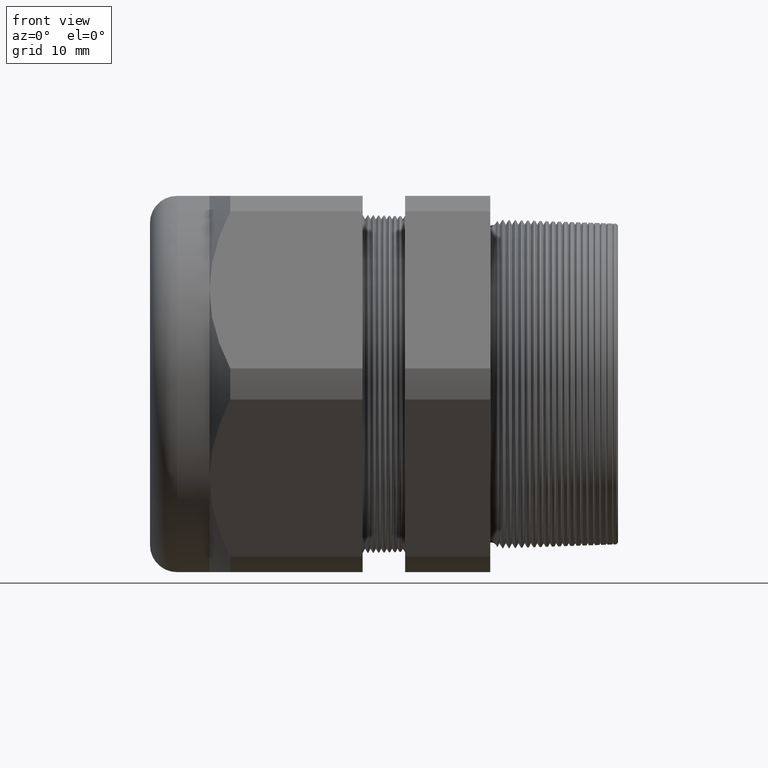
[diagram: clean part render]
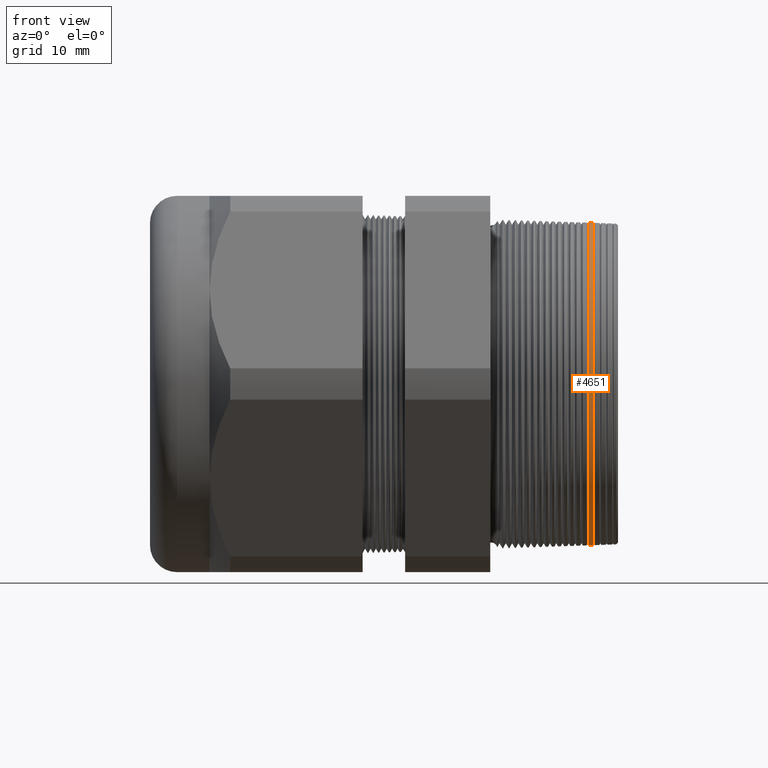
[diagram: same view with one face highlighted and labeled with its STEP entity id]
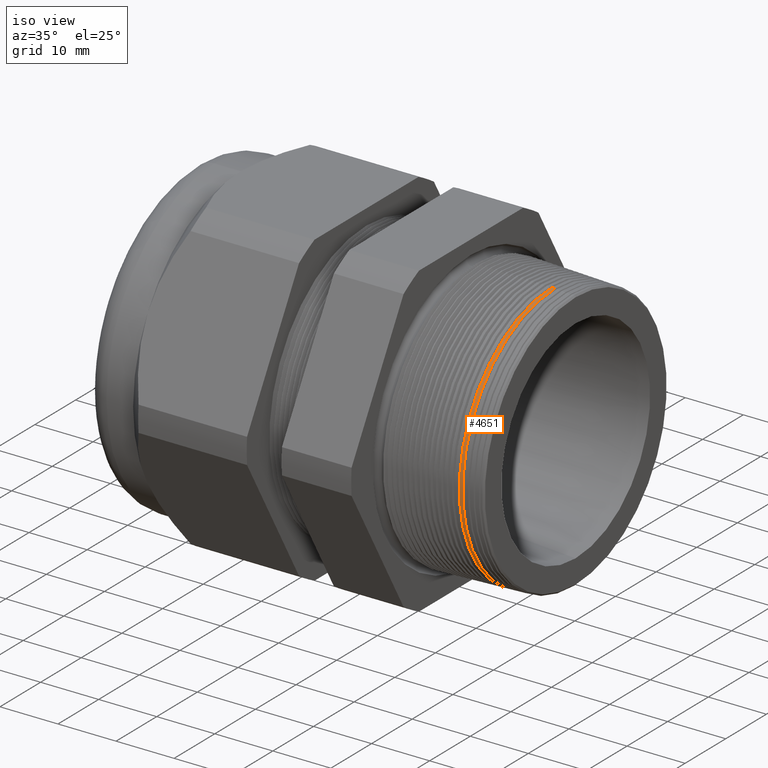
[diagram: same view with one face highlighted and labeled with its STEP entity id]
A machine part, front view. The second image highlights one B-rep face of the part: STEP entity #4651.
A second angle (iso view) of the same face is appended — the face is thin or edge-on in the first view.
In plain terms, the highlighted conical surface has half-angle 2 deg.
Its self-contained STEP definition (entity closure, byte-faithful):
#531 = CARTESIAN_POINT ( 'NONE',  ( 0.2384085732638686900, 0.0000000000000000000, 0.8960972114318578300 ) ) ;
#544 = CARTESIAN_POINT ( 'NONE',  ( 0.2384085732638686900, 1.097402581704893800E-016, -0.8960972114318578300 ) ) ;
#633 = CARTESIAN_POINT ( 'NONE',  ( 0.2605946313630380700, 1.096928181566572200E-016, -0.8953224572110462000 ) ) ;
#687 = CARTESIAN_POINT ( 'NONE',  ( 0.2605946313630380700, 0.0000000000000000000, 0.8953224572110462000 ) ) ;
#1462 = DIRECTION ( 'NONE',  ( -0.9993908270190959800, 0.0000000000000000000, 0.03489949670249389200 ) ) ;
#1463 = VECTOR ( 'NONE', #1462, 39.37007874015748100 ) ;
#1464 = CARTESIAN_POINT ( 'NONE',  ( 0.3999999999999999700, 0.0000000000000000000, 0.8904543144669638800 ) ) ;
#1468 = LINE ( 'NONE', #1464, #1463 ) ;
#1544 = DIRECTION ( 'NONE',  ( 0.0000000000000000000, 0.0000000000000000000, 1.000000000000000000 ) ) ;
#1545 = DIRECTION ( 'NONE',  ( 1.000000000000000000, 0.0000000000000000000, 0.0000000000000000000 ) ) ;
#1546 = AXIS2_PLACEMENT_3D ( 'NONE', #1553, #1545, #1544 ) ;
#1547 = CIRCLE ( 'NONE', #1546, 0.8953224572110462000 ) ;
#1553 = CARTESIAN_POINT ( 'NONE',  ( 0.2605946313630380700, 0.0000000000000000000, 0.0000000000000000000 ) ) ;
#1593 = DIRECTION ( 'NONE',  ( 0.0000000000000000000, 0.0000000000000000000, 1.000000000000000000 ) ) ;
#1594 = DIRECTION ( 'NONE',  ( -1.000000000000000000, 0.0000000000000000000, 0.0000000000000000000 ) ) ;
#1595 = CARTESIAN_POINT ( 'NONE',  ( 0.3999999999999999700, 0.0000000000000000000, 0.0000000000000000000 ) ) ;
#1596 = AXIS2_PLACEMENT_3D ( 'NONE', #1595, #1594, #1593 ) ;
#1597 = CONICAL_SURFACE ( 'NONE', #1596, 0.8904543144669638800, 0.03490658503987950600 ) ;
#1598 = FACE_OUTER_BOUND ( 'NONE', #4647, .T. ) ;
#1604 = DIRECTION ( 'NONE',  ( 0.0000000000000000000, 0.0000000000000000000, -1.000000000000000000 ) ) ;
#1605 = DIRECTION ( 'NONE',  ( -1.000000000000000000, 0.0000000000000000000, 0.0000000000000000000 ) ) ;
#1606 = CARTESIAN_POINT ( 'NONE',  ( 0.2384085732638686900, 0.0000000000000000000, 0.0000000000000000000 ) ) ;
#1607 = AXIS2_PLACEMENT_3D ( 'NONE', #1606, #1605, #1604 ) ;
#1608 = CIRCLE ( 'NONE', #1607, 0.8960972114318576100 ) ;
#3051 = CARTESIAN_POINT ( 'NONE',  ( 0.3999999999999999700, 1.090492025998918000E-016, -0.8904543144669638800 ) ) ;
#3070 = LINE ( 'NONE', #3051, #3117 ) ;
#3116 = DIRECTION ( 'NONE',  ( -0.9993908270190959800, 4.273955692856275100E-018, -0.03489949670249389200 ) ) ;
#3117 = VECTOR ( 'NONE', #3116, 39.37007874015748100 ) ;
#4042 = VERTEX_POINT ( 'NONE', #544 ) ;
#4045 = VERTEX_POINT ( 'NONE', #531 ) ;
#4100 = VERTEX_POINT ( 'NONE', #633 ) ;
#4103 = VERTEX_POINT ( 'NONE', #687 ) ;
#4578 = EDGE_CURVE ( 'NONE', #4103, #4045, #1468, .T. ) ;
#4640 = EDGE_CURVE ( 'NONE', #4103, #4100, #1547, .T. ) ;
#4641 = ORIENTED_EDGE ( 'NONE', *, *, #4643, .F. ) ;
#4642 = ORIENTED_EDGE ( 'NONE', *, *, #4578, .T. ) ;
#4643 = EDGE_CURVE ( 'NONE', #4042, #4045, #1608, .T. ) ;
#4646 = ORIENTED_EDGE ( 'NONE', *, *, #4640, .F. ) ;
#4647 = EDGE_LOOP ( 'NONE', ( #4648, #4646, #4642, #4641 ) ) ;
#4648 = ORIENTED_EDGE ( 'NONE', *, *, #5473, .F. ) ;
#4651 = ADVANCED_FACE ( 'NONE', ( #1598 ), #1597, .T. ) ;
#5473 = EDGE_CURVE ( 'NONE', #4100, #4042, #3070, .T. ) ;